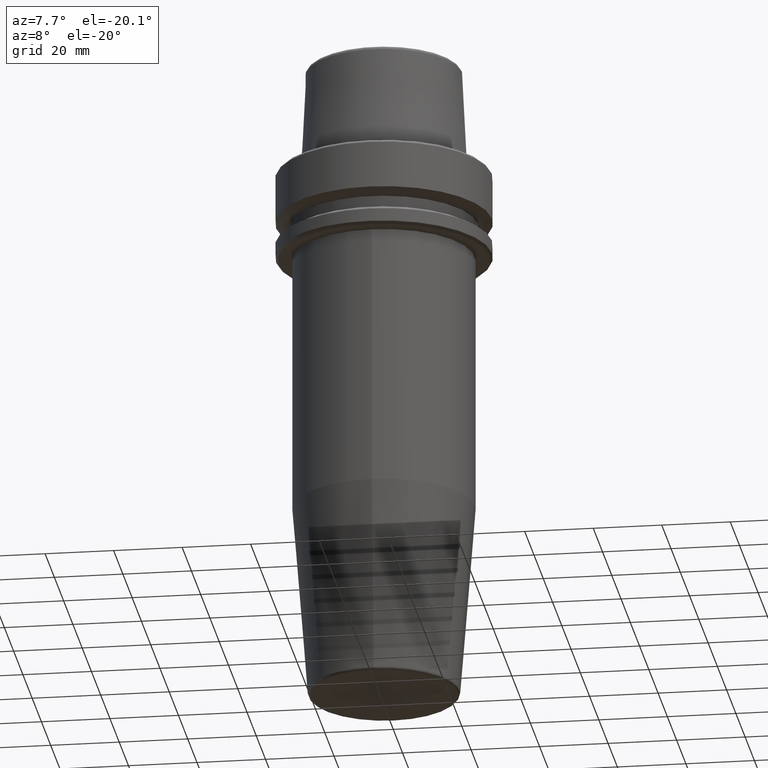
[diagram: clean part render]
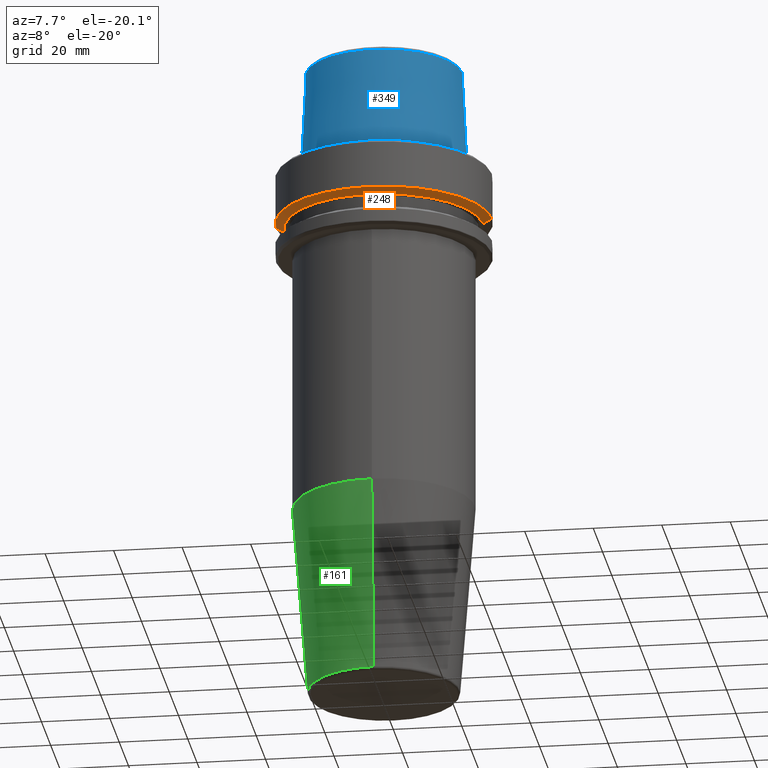
[diagram: same view with three faces highlighted in distinct colors, each labeled with its STEP entity id]
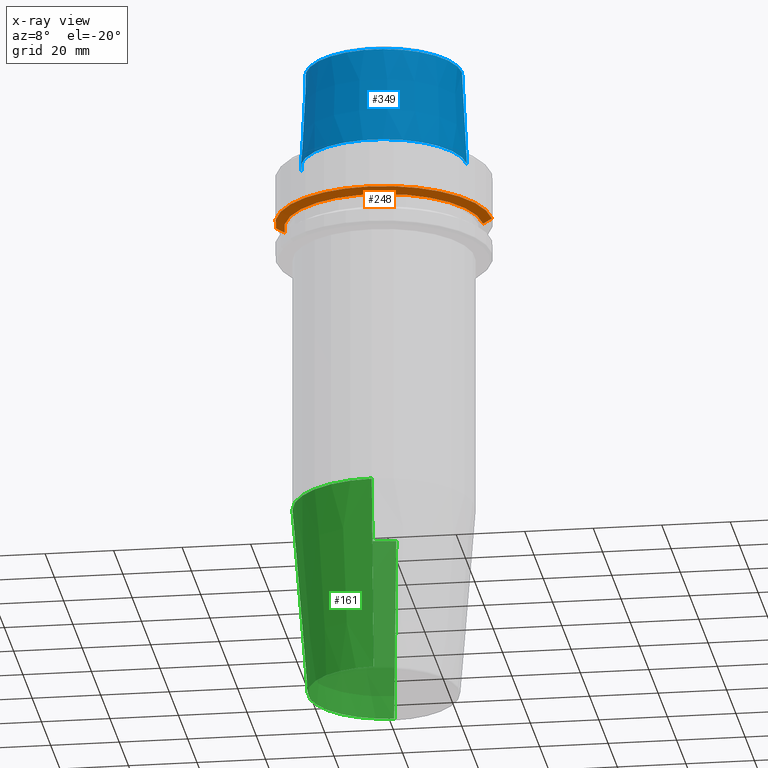
[diagram: x-ray of the same camera — body ghosted, the three highlighted faces saturated]
A machine part, auxiliary view with three faces highlighted in distinct colors.
The next image is the same camera in x-ray (body ghosted, the three faces saturated) — at least one of them is partly hidden behind the body in this view.
Their STEP definitions:

[orange] entity #248 — the highlighted conical surface has half-angle 60 deg.
#70 = CARTESIAN_POINT ( 'NONE',  ( -31.50000000000000000, 3.857637417314162700E-015, -14.62250092524070100 ) ) ;
#80 = CARTESIAN_POINT ( 'NONE',  ( 28.94089653438085100, 0.0000000000000000000, -16.10000000000001600 ) ) ;
#91 = AXIS2_PLACEMENT_3D ( 'NONE', #1185, #457, #466 ) ;
#106 = DIRECTION ( 'NONE',  ( 1.000000000000000000, 0.0000000000000000000, 0.0000000000000000000 ) ) ;
#109 = ORIENTED_EDGE ( 'NONE', *, *, #255, .T. ) ;
#114 = EDGE_CURVE ( 'NONE', #271, #971, #263, .T. ) ;
#138 = VERTEX_POINT ( 'NONE', #80 ) ;
#164 = FACE_OUTER_BOUND ( 'NONE', #1157, .T. ) ;
#171 = VERTEX_POINT ( 'NONE', #310 ) ;
#185 = ORIENTED_EDGE ( 'NONE', *, *, #114, .F. ) ;
#248 = ADVANCED_FACE ( 'NONE', ( #164 ), #1147, .T. ) ;
#255 = EDGE_CURVE ( 'NONE', #138, #971, #1070, .T. ) ;
#263 = CIRCLE ( 'NONE', #91, 31.50000000000000000 ) ;
#271 = VERTEX_POINT ( 'NONE', #70 ) ;
#282 = CARTESIAN_POINT ( 'NONE',  ( 0.0000000000000000000, 0.0000000000000000000, -16.10000000000001600 ) ) ;
#287 = ORIENTED_EDGE ( 'NONE', *, *, #1146, .T. ) ;
#310 = CARTESIAN_POINT ( 'NONE',  ( -28.94089653438085100, 3.700937523921292900E-015, -16.10000000000001600 ) ) ;
#324 = CARTESIAN_POINT ( 'NONE',  ( -28.94089653438085100, 3.544237630528423800E-015, -16.10000000000001600 ) ) ;
#328 = DIRECTION ( 'NONE',  ( -0.0000000000000000000, -0.0000000000000000000, 1.000000000000000000 ) ) ;
#364 = CARTESIAN_POINT ( 'NONE',  ( 31.50000000000000000, 0.0000000000000000000, -14.62250092524070100 ) ) ;
#457 = DIRECTION ( 'NONE',  ( -0.0000000000000000000, -0.0000000000000000000, 1.000000000000000000 ) ) ;
#462 = LINE ( 'NONE', #324, #1178 ) ;
#466 = DIRECTION ( 'NONE',  ( 1.000000000000000000, 0.0000000000000000000, 0.0000000000000000000 ) ) ;
#568 = AXIS2_PLACEMENT_3D ( 'NONE', #1018, #328, #917 ) ;
#626 = DIRECTION ( 'NONE',  ( -0.8660254037844389300, 1.060575238724907300E-016, 0.4999999999999995000 ) ) ;
#674 = EDGE_CURVE ( 'NONE', #171, #271, #462, .T. ) ;
#751 = DIRECTION ( 'NONE',  ( -0.0000000000000000000, -0.0000000000000000000, 1.000000000000000000 ) ) ;
#847 = DIRECTION ( 'NONE',  ( 0.8660254037844389300, 0.0000000000000000000, 0.4999999999999995000 ) ) ;
#891 = ORIENTED_EDGE ( 'NONE', *, *, #674, .F. ) ;
#917 = DIRECTION ( 'NONE',  ( 1.000000000000000000, 0.0000000000000000000, 0.0000000000000000000 ) ) ;
#971 = VERTEX_POINT ( 'NONE', #364 ) ;
#1007 = AXIS2_PLACEMENT_3D ( 'NONE', #282, #751, #106 ) ;
#1018 = CARTESIAN_POINT ( 'NONE',  ( 0.0000000000000000000, 0.0000000000000000000, -16.10000000000001600 ) ) ;
#1070 = LINE ( 'NONE', #1134, #1128 ) ;
#1104 = CIRCLE ( 'NONE', #568, 28.94089653438085100 ) ;
#1128 = VECTOR ( 'NONE', #847, 1000.000000000000000 ) ;
#1134 = CARTESIAN_POINT ( 'NONE',  ( 28.94089653438085100, 0.0000000000000000000, -16.10000000000001600 ) ) ;
#1146 = EDGE_CURVE ( 'NONE', #171, #138, #1104, .T. ) ;
#1147 = CONICAL_SURFACE ( 'NONE', #1007, 28.94089653438085100, 1.047197551196598300 ) ;
#1157 = EDGE_LOOP ( 'NONE', ( #891, #287, #109, #185 ) ) ;
#1178 = VECTOR ( 'NONE', #626, 1000.000000000000000 ) ;
#1185 = CARTESIAN_POINT ( 'NONE',  ( 0.0000000000000000000, 0.0000000000000000000, -14.62250092524070100 ) ) ;

[blue] entity #349 — the highlighted conical surface has half-angle 2.868 deg.
#20 = LINE ( 'NONE', #250, #721 ) ;
#30 = CARTESIAN_POINT ( 'NONE',  ( 22.77957961851797100, 2.876386432489616700E-015, 30.76004333261571900 ) ) ;
#34 = AXIS2_PLACEMENT_3D ( 'NONE', #128, #719, #912 ) ;
#102 = EDGE_CURVE ( 'NONE', #961, #424, #244, .T. ) ;
#128 = CARTESIAN_POINT ( 'NONE',  ( 0.0000000000000000000, 0.0000000000000000000, 30.76004333261571900 ) ) ;
#201 = CARTESIAN_POINT ( 'NONE',  ( 0.0000000000000000000, 0.0000000000000000000, 2.500000000000002200 ) ) ;
#219 = AXIS2_PLACEMENT_3D ( 'NONE', #201, #276, #386 ) ;
#244 = CIRCLE ( 'NONE', #34, 22.77957961851797100 ) ;
#250 = CARTESIAN_POINT ( 'NONE',  ( -24.19537568275369200, 0.0000000000000000000, 2.500000000000002200 ) ) ;
#260 = EDGE_LOOP ( 'NONE', ( #335, #306, #673, #1249 ) ) ;
#270 = LINE ( 'NONE', #272, #422 ) ;
#272 = CARTESIAN_POINT ( 'NONE',  ( 24.19537568275369200, 2.963078938405201500E-015, 2.500000000000002200 ) ) ;
#276 = DIRECTION ( 'NONE',  ( 0.0000000000000000000, 0.0000000000000000000, -1.000000000000000000 ) ) ;
#306 = ORIENTED_EDGE ( 'NONE', *, *, #102, .F. ) ;
#335 = ORIENTED_EDGE ( 'NONE', *, *, #390, .F. ) ;
#349 = ADVANCED_FACE ( 'NONE', ( #805 ), #1243, .T. ) ;
#386 = DIRECTION ( 'NONE',  ( -1.000000000000000000, 0.0000000000000000000, 0.0000000000000000000 ) ) ;
#390 = EDGE_CURVE ( 'NONE', #424, #639, #270, .T. ) ;
#422 = VECTOR ( 'NONE', #1250, 1000.000000000000200 ) ;
#424 = VERTEX_POINT ( 'NONE', #30 ) ;
#439 = EDGE_CURVE ( 'NONE', #961, #578, #20, .T. ) ;
#460 = DIRECTION ( 'NONE',  ( 1.000000000000000000, 0.0000000000000000000, 0.0000000000000000000 ) ) ;
#566 = CARTESIAN_POINT ( 'NONE',  ( 0.0000000000000000000, 0.0000000000000000000, 2.500000000000002200 ) ) ;
#578 = VERTEX_POINT ( 'NONE', #1123 ) ;
#639 = VERTEX_POINT ( 'NONE', #735 ) ;
#673 = ORIENTED_EDGE ( 'NONE', *, *, #439, .T. ) ;
#719 = DIRECTION ( 'NONE',  ( -0.0000000000000000000, -0.0000000000000000000, 1.000000000000000000 ) ) ;
#721 = VECTOR ( 'NONE', #768, 1000.000000000000200 ) ;
#735 = CARTESIAN_POINT ( 'NONE',  ( 24.19537568275369200, 0.0000000000000000000, 2.500000000000002200 ) ) ;
#765 = CARTESIAN_POINT ( 'NONE',  ( -22.77957961851797100, 0.0000000000000000000, 30.76004333261571900 ) ) ;
#768 = DIRECTION ( 'NONE',  ( -0.05003611051310804400, 0.0000000000000000000, -0.9987474093306675200 ) ) ;
#805 = FACE_OUTER_BOUND ( 'NONE', #260, .T. ) ;
#826 = AXIS2_PLACEMENT_3D ( 'NONE', #566, #1144, #460 ) ;
#912 = DIRECTION ( 'NONE',  ( 1.000000000000000000, 0.0000000000000000000, 0.0000000000000000000 ) ) ;
#961 = VERTEX_POINT ( 'NONE', #765 ) ;
#1004 = EDGE_CURVE ( 'NONE', #578, #639, #1029, .T. ) ;
#1029 = CIRCLE ( 'NONE', #826, 24.19537568275369200 ) ;
#1123 = CARTESIAN_POINT ( 'NONE',  ( -24.19537568275369200, 2.963078938405201500E-015, 2.500000000000002200 ) ) ;
#1144 = DIRECTION ( 'NONE',  ( -0.0000000000000000000, -0.0000000000000000000, 1.000000000000000000 ) ) ;
#1243 = CONICAL_SURFACE ( 'NONE', #219, 24.19537568275369200, 0.05005701257455997400 ) ;
#1249 = ORIENTED_EDGE ( 'NONE', *, *, #1004, .T. ) ;
#1250 = DIRECTION ( 'NONE',  ( 0.05003611051310804400, 6.127656258166099700E-018, -0.9987474093306675200 ) ) ;

[green] entity #161 — the highlighted conical surface has half-angle 4.5 deg.
#51 = EDGE_CURVE ( 'NONE', #684, #337, #562, .T. ) ;
#149 = LINE ( 'NONE', #1071, #1026 ) ;
#157 = VERTEX_POINT ( 'NONE', #1254 ) ;
#161 = ADVANCED_FACE ( 'NONE', ( #1054 ), #1110, .T. ) ;
#278 = VECTOR ( 'NONE', #622, 1000.000000000000100 ) ;
#314 = CIRCLE ( 'NONE', #756, 26.49999999999998200 ) ;
#337 = VERTEX_POINT ( 'NONE', #409 ) ;
#382 = EDGE_CURVE ( 'NONE', #684, #391, #149, .T. ) ;
#391 = VERTEX_POINT ( 'NONE', #1236 ) ;
#399 = CARTESIAN_POINT ( 'NONE',  ( 0.0000000000000000000, 2.808355605018980900E-015, -102.8220786872083700 ) ) ;
#409 = CARTESIAN_POINT ( 'NONE',  ( 0.0000000000000000000, 22.07252684207491500, -159.0784590957278800 ) ) ;
#412 = AXIS2_PLACEMENT_3D ( 'NONE', #399, #1161, #679 ) ;
#420 = DIRECTION ( 'NONE',  ( -0.0000000000000000000, 3.655662087007025400E-017, -1.000000000000000000 ) ) ;
#438 = EDGE_CURVE ( 'NONE', #391, #157, #314, .T. ) ;
#458 = DIRECTION ( 'NONE',  ( 0.0000000000000000000, 1.000000000000000000, 0.0000000000000000000 ) ) ;
#562 = CIRCLE ( 'NONE', #835, 22.07252684207490700 ) ;
#622 = DIRECTION ( 'NONE',  ( 9.608468044709156700E-018, 0.07845909572783713000, 0.9969173337331285200 ) ) ;
#679 = DIRECTION ( 'NONE',  ( 0.0000000000000000000, -1.000000000000000000, 0.0000000000000000000 ) ) ;
#684 = VERTEX_POINT ( 'NONE', #809 ) ;
#685 = EDGE_CURVE ( 'NONE', #337, #157, #963, .T. ) ;
#756 = AXIS2_PLACEMENT_3D ( 'NONE', #872, #1143, #458 ) ;
#774 = ORIENTED_EDGE ( 'NONE', *, *, #685, .F. ) ;
#779 = DIRECTION ( 'NONE',  ( 0.0000000000000000000, -0.07845909572783721400, 0.9969173337331285200 ) ) ;
#797 = EDGE_LOOP ( 'NONE', ( #774, #869, #1164, #846 ) ) ;
#809 = CARTESIAN_POINT ( 'NONE',  ( 2.703104934624107400E-015, -22.07252684207490700, -159.0784590957278800 ) ) ;
#835 = AXIS2_PLACEMENT_3D ( 'NONE', #839, #420, #858 ) ;
#839 = CARTESIAN_POINT ( 'NONE',  ( 0.0000000000000000000, 4.864898775135676200E-015, -159.0784590957278800 ) ) ;
#846 = ORIENTED_EDGE ( 'NONE', *, *, #438, .T. ) ;
#858 = DIRECTION ( 'NONE',  ( 0.0000000000000000000, 1.000000000000000000, 0.0000000000000000000 ) ) ;
#869 = ORIENTED_EDGE ( 'NONE', *, *, #51, .F. ) ;
#872 = CARTESIAN_POINT ( 'NONE',  ( 0.0000000000000000000, 2.808355605018980900E-015, -102.8220786872083700 ) ) ;
#913 = CARTESIAN_POINT ( 'NONE',  ( 3.245314017740483400E-015, 26.49999999999998200, -102.8220786872083700 ) ) ;
#963 = LINE ( 'NONE', #913, #278 ) ;
#1026 = VECTOR ( 'NONE', #779, 1000.000000000000100 ) ;
#1054 = FACE_OUTER_BOUND ( 'NONE', #797, .T. ) ;
#1071 = CARTESIAN_POINT ( 'NONE',  ( 0.0000000000000000000, -26.49999999999997500, -102.8220786872083700 ) ) ;
#1110 = CONICAL_SURFACE ( 'NONE', #412, 26.49999999999997900, 0.07853981633973704200 ) ;
#1143 = DIRECTION ( 'NONE',  ( -0.0000000000000000000, 3.655662087007025400E-017, -1.000000000000000000 ) ) ;
#1161 = DIRECTION ( 'NONE',  ( 0.0000000000000000000, -3.655662087007025400E-017, 1.000000000000000000 ) ) ;
#1164 = ORIENTED_EDGE ( 'NONE', *, *, #382, .T. ) ;
#1236 = CARTESIAN_POINT ( 'NONE',  ( 0.0000000000000000000, -26.49999999999997500, -102.8220786872083700 ) ) ;
#1254 = CARTESIAN_POINT ( 'NONE',  ( 3.245314017740483400E-015, 26.49999999999998200, -102.8220786872083700 ) ) ;